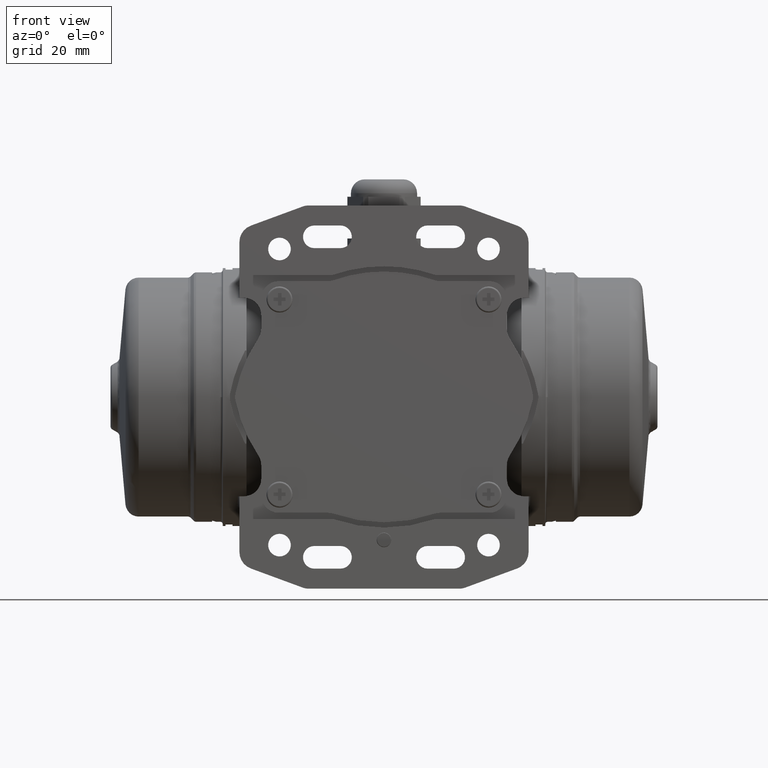
[diagram: clean part render]
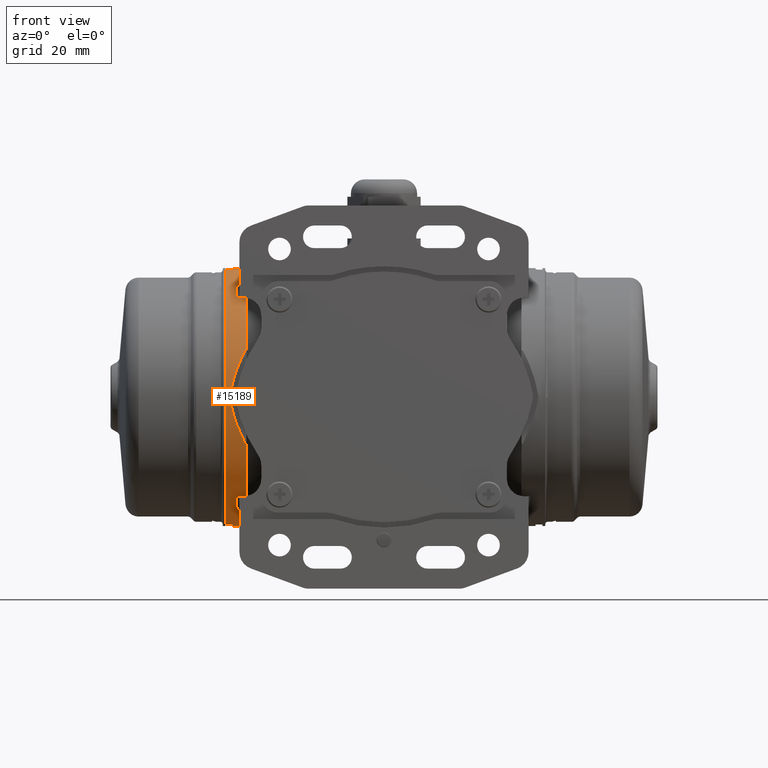
[diagram: same view with one face highlighted and labeled with its STEP entity id]
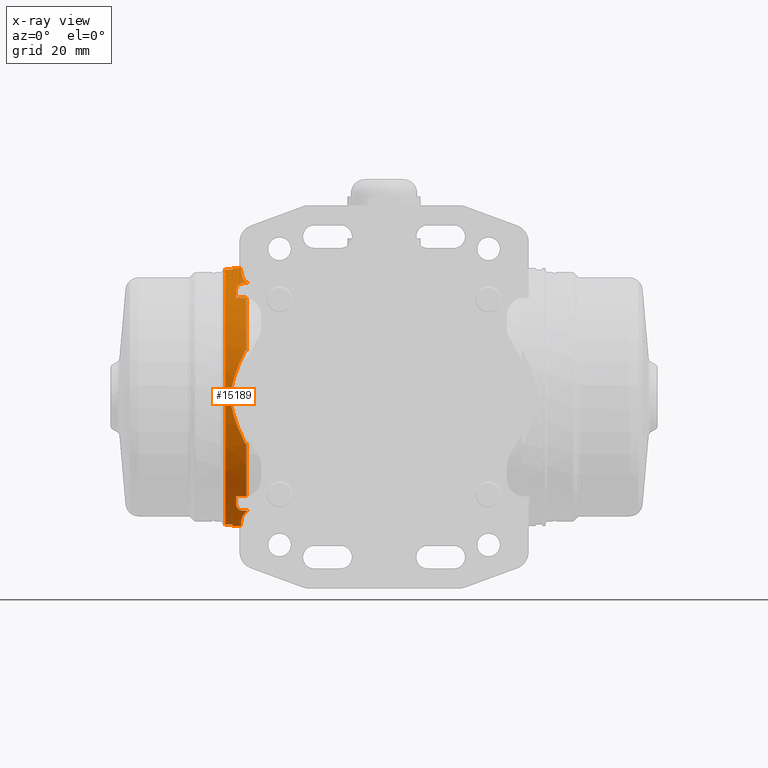
[diagram: x-ray of the same camera — body ghosted, the highlighted face saturated]
A machine part, front view. The second image highlights one B-rep face of the part: STEP entity #15189.
The next image is the same camera in x-ray: the body ghosted, the highlighted face saturated — about 1% of this face is hidden behind the body in this view.
In plain terms, the highlighted cylindrical surface (partial cylindrical patch) has radius 37 mm, axis along (1, 0, 0).
Its self-contained STEP definition (entity closure, byte-faithful):
#7020 = DIRECTION ( 'NONE',  ( -1.000000000000000000, -0.0000000000000000000, -0.0000000000000000000 ) ) ;
#7021 = VECTOR ( 'NONE', #7020, 1000.000000000000000 ) ;
#7022 = CARTESIAN_POINT ( 'NONE',  ( -45.50000000000000000, -23.59555042799380300, 28.50000000000000000 ) ) ;
#7023 = LINE ( 'NONE', #7022, #7021 ) ;
#7024 = AXIS2_PLACEMENT_3D ( 'NONE', #7088, #7087, #7086 ) ;
#7027 = CARTESIAN_POINT ( 'NONE',  ( -43.97929498404933900, -36.94746647253378300, -2.046763744600750300 ) ) ;
#7028 = CARTESIAN_POINT ( 'NONE',  ( -43.72579765124223900, -36.86999388632007400, -3.147708910928642900 ) ) ;
#7029 = CARTESIAN_POINT ( 'NONE',  ( -43.58844623499488300, -36.81892656054223800, -3.696550730294636500 ) ) ;
#7030 = CARTESIAN_POINT ( 'NONE',  ( -43.14894989208048800, -36.63136469944939200, -5.323014347614549300 ) ) ;
#7031 = CARTESIAN_POINT ( 'NONE',  ( -42.81921639415041600, -36.46071629422613100, -6.382411737642537600 ) ) ;
#7032 = CARTESIAN_POINT ( 'NONE',  ( -41.72669007071905900, -35.82440670263269300, -9.491466352031563900 ) ) ;
#7033 = CARTESIAN_POINT ( 'NONE',  ( -40.86115037828177100, -35.23526740595299600, -11.47241846451104100 ) ) ;
#7034 = CARTESIAN_POINT ( 'NONE',  ( -39.86795543595365400, -34.50000000000000000, -13.36974195712096000 ) ) ;
#7035 = B_SPLINE_CURVE_WITH_KNOTS ( 'NONE', 3,
 ( #7034, #7033, #7032, #7031, #7030, #7029, #7028, #7027, #7090, #7089 ),
 .UNSPECIFIED., .F., .F.,
 ( 4, 2, 2, 2, 4 ),
 ( 0.0000000000000000000, 0.006707522283595581500, 0.01006128342539337600, 0.01173816399629226900, 0.01341504456719116300 ),
 .UNSPECIFIED. ) ;
#7036 = CIRCLE ( 'NONE', #7024, 37.00000000000000000 ) ;
#7037 = CARTESIAN_POINT ( 'NONE',  ( -45.50000000000000000, -17.46535450637174900, 32.61842105263160400 ) ) ;
#7038 = LINE ( 'NONE', #7037, #7061 ) ;
#7039 = CARTESIAN_POINT ( 'NONE',  ( -40.50000000000000000, -17.46535450637174900, 32.61842105263160400 ) ) ;
#7040 = CARTESIAN_POINT ( 'NONE',  ( -40.69606229046509300, -17.46535450637174900, 32.61842105263160400 ) ) ;
#7041 = CARTESIAN_POINT ( 'NONE',  ( -40.88581157653456400, -17.51997071809539400, 32.58926499061522700 ) ) ;
#7042 = CARTESIAN_POINT ( 'NONE',  ( -41.13539920093769800, -17.64901003314041000, 32.51945320109139500 ) ) ;
#7043 = CARTESIAN_POINT ( 'NONE',  ( -41.21430576849952100, -17.70022710671970500, 32.49162954343682200 ) ) ;
#7044 = CARTESIAN_POINT ( 'NONE',  ( -41.36042047361856800, -17.81161701175332400, 32.43070041556320100 ) ) ;
#7045 = CARTESIAN_POINT ( 'NONE',  ( -41.42788431633796600, -17.87175725663605500, 32.39761642799825100 ) ) ;
#7046 = CARTESIAN_POINT ( 'NONE',  ( -41.61768408206861400, -18.06202153032009900, 32.29217256335590500 ) ) ;
#7047 = CARTESIAN_POINT ( 'NONE',  ( -41.72808511266013900, -18.20284269768667000, 32.21310642167812000 ) ) ;
#7048 = CARTESIAN_POINT ( 'NONE',  ( -41.92002598386589100, -18.49194142184200700, 32.04802349696857500 ) ) ;
#7049 = CARTESIAN_POINT ( 'NONE',  ( -42.00257235927868000, -18.64142858634819400, 31.96136203096959600 ) ) ;
#7050 = CARTESIAN_POINT ( 'NONE',  ( -42.22001889186756100, -19.10023421999756400, 31.69080534160869400 ) ) ;
#7051 = CARTESIAN_POINT ( 'NONE',  ( -42.32469618211577300, -19.42028160001210700, 31.49593305248655300 ) ) ;
#7052 = CARTESIAN_POINT ( 'NONE',  ( -42.46406304824091600, -20.05580243049692500, 31.09511095235643200 ) ) ;
#7053 = DIRECTION ( 'NONE',  ( -1.000000000000000000, -0.0000000000000000000, -0.0000000000000000000 ) ) ;
#7054 = VECTOR ( 'NONE', #7053, 1000.000000000000000 ) ;
#7055 = CARTESIAN_POINT ( 'NONE',  ( -45.50000000000000000, -17.46535450637174900, -32.61842105263160400 ) ) ;
#7056 = LINE ( 'NONE', #7055, #7054 ) ;
#7057 = CARTESIAN_POINT ( 'NONE',  ( -42.50000000000000700, -20.37481274326711800, 30.88715395729880000 ) ) ;
#7058 = CARTESIAN_POINT ( 'NONE',  ( -42.50000000000000000, -20.69508469349455000, 30.67105263157894900 ) ) ;
#7059 = B_SPLINE_CURVE_WITH_KNOTS ( 'NONE', 3,
 ( #7058, #7057, #7052, #7051, #7050, #7049, #7048, #7047, #7046, #7045, #7044, #7043, #7042, #7041, #7040, #7039 ),
 .UNSPECIFIED., .F., .F.,
 ( 4, 2, 2, 2, 2, 2, 2, 4 ),
 ( 0.0000000000000000000, 0.001145626045637460000, 0.002291252091274925700, 0.002864065114093654900, 0.003436878136912383800, 0.003723284648321749000, 0.004009691159731113900, 0.004582504182549820100 ),
 .UNSPECIFIED. ) ;
#7060 = DIRECTION ( 'NONE',  ( 1.000000000000000000, 0.0000000000000000000, 0.0000000000000000000 ) ) ;
#7061 = VECTOR ( 'NONE', #7060, 1000.000000000000000 ) ;
#7063 = CARTESIAN_POINT ( 'NONE',  ( -40.25000000000000000, -23.59555042799380300, 28.50000000000000000 ) ) ;
#7064 = CARTESIAN_POINT ( 'NONE',  ( -39.99651278259046400, -23.59555042799385300, 28.50000000000000000 ) ) ;
#7065 = CARTESIAN_POINT ( 'NONE',  ( -39.74657882969976400, -23.61874617009254600, 28.48084006557163800 ) ) ;
#7066 = CARTESIAN_POINT ( 'NONE',  ( -39.50000000000000000, -23.66371253172035000, 28.44342998332130200 ) ) ;
#7068 = CARTESIAN_POINT ( 'NONE',  ( -42.50000000000000000, -20.69508469349455000, -30.67105263157894900 ) ) ;
#7069 = CARTESIAN_POINT ( 'NONE',  ( -42.49999999999999300, -20.37481863160391900, -30.88714998418352000 ) ) ;
#7070 = CARTESIAN_POINT ( 'NONE',  ( -42.46406591083722000, -20.05609847523736600, -31.09491225482470600 ) ) ;
#7071 = CARTESIAN_POINT ( 'NONE',  ( -42.35981417049017500, -19.58028069174758200, -31.39502781617326100 ) ) ;
#7072 = CARTESIAN_POINT ( 'NONE',  ( -42.31650839913705700, -19.42207287401804900, -31.49312910412322000 ) ) ;
#7073 = CARTESIAN_POINT ( 'NONE',  ( -42.21092072817045000, -19.10677842108286800, -31.68540853232418900 ) ) ;
#7074 = CARTESIAN_POINT ( 'NONE',  ( -42.14839390078090300, -18.94923283969790600, -31.77984317825596600 ) ) ;
#7075 = CARTESIAN_POINT ( 'NONE',  ( -41.92997678379199300, -18.48800509326775200, -32.05185015349064100 ) ) ;
#7076 = CARTESIAN_POINT ( 'NONE',  ( -41.74398808795023500, -18.18915147736257900, -32.22170095316668900 ) ) ;
#7077 = CARTESIAN_POINT ( 'NONE',  ( -41.36715770188025200, -17.81062609368968800, -32.43150334314177700 ) ) ;
#7078 = CARTESIAN_POINT ( 'NONE',  ( -41.22107413550824600, -17.69362275989858800, -32.49531377638123800 ) ) ;
#7079 = CARTESIAN_POINT ( 'NONE',  ( -40.88714112399405600, -17.52034378969545600, -32.58906652983412800 ) ) ;
#7080 = B_SPLINE_CURVE_WITH_KNOTS ( 'NONE', 3,
 ( #7066, #7065, #7064, #7063 ),
 .UNSPECIFIED., .F., .F.,
 ( 4, 4 ),
 ( 0.0000000000000000000, 0.0007552127112088760900 ),
 .UNSPECIFIED. ) ;
#7083 = CARTESIAN_POINT ( 'NONE',  ( -40.69617017647313900, -17.46535450637175300, -32.61842105263160400 ) ) ;
#7084 = CARTESIAN_POINT ( 'NONE',  ( -40.50000000000000000, -17.46535450637174900, -32.61842105263160400 ) ) ;
#7085 = B_SPLINE_CURVE_WITH_KNOTS ( 'NONE', 3,
 ( #7084, #7083, #7079, #7078, #7077, #7076, #7075, #7074, #7073, #7072, #7071, #7070, #7069, #7068 ),
 .UNSPECIFIED., .F., .F.,
 ( 4, 2, 2, 2, 2, 2, 4 ),
 ( 0.0000000000000000000, 0.0005877091203574149600, 0.001175418240714829900, 0.002350836481429659800, 0.002938545601787069300, 0.003526254722144479100, 0.004701672962859300600 ),
 .UNSPECIFIED. ) ;
#7086 = DIRECTION ( 'NONE',  ( 0.0000000000000000000, 6.217248937900876600E-015, -1.000000000000000000 ) ) ;
#7087 = DIRECTION ( 'NONE',  ( -1.000000000000000000, -0.0000000000000000000, -0.0000000000000000000 ) ) ;
#7088 = CARTESIAN_POINT ( 'NONE',  ( -41.00000000000000000, 0.0000000000000000000, 0.0000000000000000000 ) ) ;
#7089 = CARTESIAN_POINT ( 'NONE',  ( -44.20190712797354800, -36.98812098160704700, -0.9375000000000000000 ) ) ;
#7090 = CARTESIAN_POINT ( 'NONE',  ( -44.09576958012794300, -36.97402792233361200, -1.493527500167453500 ) ) ;
#8457 = CARTESIAN_POINT ( 'NONE',  ( -44.20190712797354800, -36.98812098160704700, -0.9375000000000000000 ) ) ;
#8458 = CARTESIAN_POINT ( 'NONE',  ( -39.50000000000000000, -34.50000000000000000, 13.36974195712093800 ) ) ;
#8477 = CARTESIAN_POINT ( 'NONE',  ( -40.50000000000000000, -17.46535450637174900, -32.61842105263160400 ) ) ;
#8488 = CARTESIAN_POINT ( 'NONE',  ( -41.00000000000000000, 0.0000000000000000000, -36.99999999999999300 ) ) ;
#8512 = DIRECTION ( 'NONE',  ( 1.000000000000000000, 0.0000000000000000000, 0.0000000000000000000 ) ) ;
#8513 = VECTOR ( 'NONE', #8512, 1000.000000000000000 ) ;
#8514 = CARTESIAN_POINT ( 'NONE',  ( -45.50000000000000000, -23.59555042799385300, -28.50000000000000000 ) ) ;
#8515 = LINE ( 'NONE', #8514, #8513 ) ;
#8522 = DIRECTION ( 'NONE',  ( 1.000000000000000000, 0.0000000000000000000, 0.0000000000000000000 ) ) ;
#8527 = CARTESIAN_POINT ( 'NONE',  ( -39.50000000000000000, 0.0000000000000000000, 0.0000000000000000000 ) ) ;
#8530 = CIRCLE ( 'NONE', #8574, 37.00000000000000000 ) ;
#8535 = CARTESIAN_POINT ( 'NONE',  ( -42.50000000000000000, -23.59555042799385300, -28.50000000000000000 ) ) ;
#8538 = CARTESIAN_POINT ( 'NONE',  ( -39.50000000000000000, -23.66371253172035000, -28.44342998332130200 ) ) ;
#8539 = CARTESIAN_POINT ( 'NONE',  ( -39.74657882969975700, -23.61874617009254600, -28.48084006557163400 ) ) ;
#8540 = CARTESIAN_POINT ( 'NONE',  ( -39.99651278259047200, -23.59555042799385300, -28.50000000000000000 ) ) ;
#8541 = CARTESIAN_POINT ( 'NONE',  ( -40.25000000000000000, -23.59555042799385300, -28.50000000000000000 ) ) ;
#8544 = CARTESIAN_POINT ( 'NONE',  ( -39.50000000000000000, -34.50000000000000000, -13.36974195712093800 ) ) ;
#8545 = B_SPLINE_CURVE_WITH_KNOTS ( 'NONE', 3,
 ( #8541, #8540, #8539, #8538 ),
 .UNSPECIFIED., .F., .F.,
 ( 4, 4 ),
 ( 0.0000000000000000000, 0.0007552127112088692600 ),
 .UNSPECIFIED. ) ;
#8549 = CARTESIAN_POINT ( 'NONE',  ( -38.90880135590999300, -17.46535450636384800, -32.61842105263580300 ) ) ;
#8550 = CARTESIAN_POINT ( 'NONE',  ( -39.05700078598742000, -17.33851053776598400, -32.68633895936041300 ) ) ;
#8551 = CARTESIAN_POINT ( 'NONE',  ( -39.19152129172922400, -17.19766572100087400, -32.76076564588446200 ) ) ;
#8552 = CARTESIAN_POINT ( 'NONE',  ( -39.43362830842846700, -16.90346856777728800, -32.91352643418839100 ) ) ;
#8553 = CARTESIAN_POINT ( 'NONE',  ( -39.54239140874485500, -16.74904211674071100, -32.99244892897336000 ) ) ;
#8554 = CARTESIAN_POINT ( 'NONE',  ( -39.84117407413256700, -16.26861199442412300, -33.23342679309428900 ) ) ;
#8555 = CARTESIAN_POINT ( 'NONE',  ( -40.00396776862909600, -15.92465674057796900, -33.39991084903807900 ) ) ;
#8556 = CARTESIAN_POINT ( 'NONE',  ( -40.27521931202863200, -15.22499370799621200, -33.72459493634287500 ) ) ;
#8557 = CARTESIAN_POINT ( 'NONE',  ( -40.38509931579449100, -14.86615653473193500, -33.88444491682779600 ) ) ;
#8558 = CARTESIAN_POINT ( 'NONE',  ( -40.56991837065994100, -14.13426085586953100, -34.19621159565669200 ) ) ;
#8559 = CARTESIAN_POINT ( 'NONE',  ( -40.64476746356177700, -13.76034655455819500, -34.34847003477015200 ) ) ;
#8560 = CARTESIAN_POINT ( 'NONE',  ( -40.82957792029949900, -12.62585357913357800, -34.78858930055167100 ) ) ;
#8561 = CARTESIAN_POINT ( 'NONE',  ( -40.90013936070811700, -11.85832036126038600, -35.05772440362877500 ) ) ;
#8562 = CARTESIAN_POINT ( 'NONE',  ( -40.98573780869259100, -10.30363124082755300, -35.54573090265713400 ) ) ;
#8564 = DIRECTION ( 'NONE',  ( -1.000000000000000000, -0.0000000000000000000, -0.0000000000000000000 ) ) ;
#8565 = VECTOR ( 'NONE', #8564, 1000.000000000000000 ) ;
#8566 = CARTESIAN_POINT ( 'NONE',  ( -45.50000000000000000, -34.50000000000000000, -13.36974195712093800 ) ) ;
#8567 = LINE ( 'NONE', #8566, #8565 ) ;
#8568 = CARTESIAN_POINT ( 'NONE',  ( -40.99999999999999300, -9.516432987338500700, -35.76463215197206600 ) ) ;
#8569 = CARTESIAN_POINT ( 'NONE',  ( -41.00000000000000000, -8.720118586411480500, -35.95774647887324700 ) ) ;
#8570 = CARTESIAN_POINT ( 'NONE',  ( -44.20190712797354800, -36.98812098160704700, 0.9375000000000000000 ) ) ;
#8571 = B_SPLINE_CURVE_WITH_KNOTS ( 'NONE', 3,
 ( #8569, #8568, #8562, #8561, #8560, #8559, #8558, #8557, #8556, #8555, #8554, #8553, #8552, #8551, #8550, #8549 ),
 .UNSPECIFIED., .F., .F.,
 ( 4, 2, 2, 2, 2, 2, 2, 4 ),
 ( 0.0000000000000000000, 0.002447431982798511800, 0.004894863965597023500, 0.006118579956996280700, 0.007342295948395537000, 0.008566011939794789000, 0.009177869935494416300, 0.009789727931194041800 ),
 .UNSPECIFIED. ) ;
#8572 = CARTESIAN_POINT ( 'NONE',  ( -39.86795543595365400, -34.50000000000000000, 13.36974195712096000 ) ) ;
#8573 = DIRECTION ( 'NONE',  ( 0.0000000000000000000, 0.0000000000000000000, -1.000000000000000000 ) ) ;
#8574 = AXIS2_PLACEMENT_3D ( 'NONE', #8527, #8522, #8573 ) ;
#8577 = CARTESIAN_POINT ( 'NONE',  ( -39.86795543595365400, -34.50000000000000000, -13.36974195712096000 ) ) ;
#8582 = CIRCLE ( 'NONE', #8636, 37.00000000000000000 ) ;
#8596 = DIRECTION ( 'NONE',  ( 0.0000000000000000000, 0.0000000000000000000, -1.000000000000000000 ) ) ;
#8597 = DIRECTION ( 'NONE',  ( -1.000000000000000000, -0.0000000000000000000, -0.0000000000000000000 ) ) ;
#8598 = CARTESIAN_POINT ( 'NONE',  ( -41.00000000000000000, 0.0000000000000000000, 0.0000000000000000000 ) ) ;
#8599 = AXIS2_PLACEMENT_3D ( 'NONE', #8598, #8597, #8596 ) ;
#8606 = CARTESIAN_POINT ( 'NONE',  ( -41.00000000000000000, -8.720118586411480500, -35.95774647887324700 ) ) ;
#8607 = CIRCLE ( 'NONE', #8599, 37.00000000000000000 ) ;
#8611 = CARTESIAN_POINT ( 'NONE',  ( -42.50000000000000000, -20.69508469349455000, 30.67105263157894900 ) ) ;
#8618 = CARTESIAN_POINT ( 'NONE',  ( -40.25000000000000000, -23.59555042799385300, -28.50000000000000000 ) ) ;
#8619 = CARTESIAN_POINT ( 'NONE',  ( -38.90880135590074900, -17.46535450637174900, 32.61842105263160400 ) ) ;
#8633 = DIRECTION ( 'NONE',  ( 0.0000000000000000000, 0.0000000000000000000, -1.000000000000000000 ) ) ;
#8634 = DIRECTION ( 'NONE',  ( 1.000000000000000000, 0.0000000000000000000, 0.0000000000000000000 ) ) ;
#8635 = CARTESIAN_POINT ( 'NONE',  ( -39.50000000000000000, 0.0000000000000000000, 0.0000000000000000000 ) ) ;
#8636 = AXIS2_PLACEMENT_3D ( 'NONE', #8635, #8634, #8633 ) ;
#8639 = DIRECTION ( 'NONE',  ( -1.875376730785737500E-016, 0.0000000000000000000, -1.000000000000000000 ) ) ;
#8640 = DIRECTION ( 'NONE',  ( -1.000000000000000000, -0.0000000000000000000, 2.523234146875355000E-016 ) ) ;
#8641 = CARTESIAN_POINT ( 'NONE',  ( -42.50000000000000000, 0.0000000000000000000, 0.0000000000000000000 ) ) ;
#8642 = AXIS2_PLACEMENT_3D ( 'NONE', #8641, #8640, #8639 ) ;
#8644 = CIRCLE ( 'NONE', #8642, 37.00000000000000000 ) ;
#9014 = DIRECTION ( 'NONE',  ( -1.875376730785737500E-016, -1.065814103640150100E-014, -1.000000000000000000 ) ) ;
#9015 = DIRECTION ( 'NONE',  ( -1.000000000000000000, -0.0000000000000000000, 2.523234146875355000E-016 ) ) ;
#9016 = CARTESIAN_POINT ( 'NONE',  ( -42.50000000000000000, 0.0000000000000000000, 0.0000000000000000000 ) ) ;
#9017 = AXIS2_PLACEMENT_3D ( 'NONE', #9016, #9015, #9014 ) ;
#9018 = CIRCLE ( 'NONE', #9017, 37.00000000000000000 ) ;
#9021 = CARTESIAN_POINT ( 'NONE',  ( -41.00000000000000000, -8.720118586411409500, 35.95774647887324700 ) ) ;
#15012 = EDGE_CURVE ( 'NONE', #15203, #15043, #23052, .T. ) ;
#15041 = ORIENTED_EDGE ( 'NONE', *, *, #15012, .F. ) ;
#15043 = VERTEX_POINT ( 'NONE', #23072 ) ;
#15108 = VERTEX_POINT ( 'NONE', #24756 ) ;
#15135 = ORIENTED_EDGE ( 'NONE', *, *, #16129, .T. ) ;
#15136 = VERTEX_POINT ( 'NONE', #24973 ) ;
#15137 = ORIENTED_EDGE ( 'NONE', *, *, #16067, .T. ) ;
#15138 = EDGE_CURVE ( 'NONE', #16096, #16095, #25065, .T. ) ;
#15140 = VERTEX_POINT ( 'NONE', #24908 ) ;
#15141 = VERTEX_POINT ( 'NONE', #25074 ) ;
#15145 = EDGE_CURVE ( 'NONE', #16095, #16060, #25081, .T. ) ;
#15146 = ORIENTED_EDGE ( 'NONE', *, *, #15380, .T. ) ;
#15150 = ORIENTED_EDGE ( 'NONE', *, *, #15186, .F. ) ;
#15152 = ORIENTED_EDGE ( 'NONE', *, *, #15166, .F. ) ;
#15153 = VERTEX_POINT ( 'NONE', #25129 ) ;
#15157 = VERTEX_POINT ( 'NONE', #25124 ) ;
#15158 = ORIENTED_EDGE ( 'NONE', *, *, #15182, .T. ) ;
#15166 = EDGE_CURVE ( 'NONE', #15191, #15153, #25092, .T. ) ;
#15171 = ORIENTED_EDGE ( 'NONE', *, *, #15181, .F. ) ;
#15176 = VERTEX_POINT ( 'NONE', #25149 ) ;
#15181 = EDGE_CURVE ( 'NONE', #15153, #15108, #25194, .T. ) ;
#15182 = EDGE_CURVE ( 'NONE', #15191, #15157, #25187, .T. ) ;
#15186 = EDGE_CURVE ( 'NONE', #15043, #15176, #25177, .T. ) ;
#15189 = ADVANCED_FACE ( 'NONE', ( #25169 ), #25240, .T. ) ;
#15191 = VERTEX_POINT ( 'NONE', #25238 ) ;
#15194 = EDGE_LOOP ( 'NONE', ( #15171, #15152, #15158, #15195, #15150, #15041, #15204, #16119, #15377, #16059, #16062, #16126, #15375, #15137, #16092, #16070, #15357, #16080, #15359, #16111, #15362, #15146, #16128, #15135, #16127, #15328, #16130, #16101 ) ) ;
#15195 = ORIENTED_EDGE ( 'NONE', *, *, #15208, .T. ) ;
#15203 = VERTEX_POINT ( 'NONE', #25249 ) ;
#15204 = ORIENTED_EDGE ( 'NONE', *, *, #15336, .T. ) ;
#15208 = EDGE_CURVE ( 'NONE', #15157, #15176, #25312, .T. ) ;
#15283 = VERTEX_POINT ( 'NONE', #25480 ) ;
#15325 = VERTEX_POINT ( 'NONE', #25584 ) ;
#15326 = VERTEX_POINT ( 'NONE', #25583 ) ;
#15328 = ORIENTED_EDGE ( 'NONE', *, *, #15381, .T. ) ;
#15329 = EDGE_CURVE ( 'NONE', #16104, #16131, #25577, .T. ) ;
#15336 = EDGE_CURVE ( 'NONE', #15203, #16056, #25581, .T. ) ;
#15354 = VERTEX_POINT ( 'NONE', #25644 ) ;
#15357 = ORIENTED_EDGE ( 'NONE', *, *, #15376, .T. ) ;
#15358 = EDGE_CURVE ( 'NONE', #16061, #16096, #25623, .T. ) ;
#15359 = ORIENTED_EDGE ( 'NONE', *, *, #15138, .T. ) ;
#15362 = ORIENTED_EDGE ( 'NONE', *, *, #16086, .F. ) ;
#15363 = EDGE_CURVE ( 'NONE', #15140, #15354, #7023, .T. ) ;
#15373 = EDGE_CURVE ( 'NONE', #16102, #15136, #7059, .T. ) ;
#15374 = EDGE_CURVE ( 'NONE', #15325, #16063, #7056, .T. ) ;
#15375 = ORIENTED_EDGE ( 'NONE', *, *, #16064, .T. ) ;
#15376 = EDGE_CURVE ( 'NONE', #16091, #16061, #7035, .T. ) ;
#15377 = ORIENTED_EDGE ( 'NONE', *, *, #16090, .T. ) ;
#15378 = EDGE_CURVE ( 'NONE', #16131, #15108, #7036, .T. ) ;
#15379 = EDGE_CURVE ( 'NONE', #16063, #15283, #7085, .T. ) ;
#15380 = EDGE_CURVE ( 'NONE', #15141, #15140, #7080, .T. ) ;
#15381 = EDGE_CURVE ( 'NONE', #15136, #16104, #7038, .T. ) ;
#16056 = VERTEX_POINT ( 'NONE', #8488 ) ;
#16059 = ORIENTED_EDGE ( 'NONE', *, *, #15374, .T. ) ;
#16060 = VERTEX_POINT ( 'NONE', #8458 ) ;
#16061 = VERTEX_POINT ( 'NONE', #8457 ) ;
#16062 = ORIENTED_EDGE ( 'NONE', *, *, #15379, .T. ) ;
#16063 = VERTEX_POINT ( 'NONE', #8477 ) ;
#16064 = EDGE_CURVE ( 'NONE', #16079, #16105, #8515, .T. ) ;
#16067 = EDGE_CURVE ( 'NONE', #16105, #15326, #8545, .T. ) ;
#16068 = VERTEX_POINT ( 'NONE', #8544 ) ;
#16070 = ORIENTED_EDGE ( 'NONE', *, *, #16093, .T. ) ;
#16079 = VERTEX_POINT ( 'NONE', #8535 ) ;
#16080 = ORIENTED_EDGE ( 'NONE', *, *, #15358, .T. ) ;
#16086 = EDGE_CURVE ( 'NONE', #15141, #16060, #8530, .T. ) ;
#16090 = EDGE_CURVE ( 'NONE', #16103, #15325, #8571, .T. ) ;
#16091 = VERTEX_POINT ( 'NONE', #8577 ) ;
#16092 = ORIENTED_EDGE ( 'NONE', *, *, #16121, .F. ) ;
#16093 = EDGE_CURVE ( 'NONE', #16068, #16091, #8567, .T. ) ;
#16095 = VERTEX_POINT ( 'NONE', #8572 ) ;
#16096 = VERTEX_POINT ( 'NONE', #8570 ) ;
#16101 = ORIENTED_EDGE ( 'NONE', *, *, #15378, .T. ) ;
#16102 = VERTEX_POINT ( 'NONE', #8611 ) ;
#16103 = VERTEX_POINT ( 'NONE', #8606 ) ;
#16104 = VERTEX_POINT ( 'NONE', #8619 ) ;
#16105 = VERTEX_POINT ( 'NONE', #8618 ) ;
#16106 = EDGE_CURVE ( 'NONE', #16056, #16103, #8607, .T. ) ;
#16111 = ORIENTED_EDGE ( 'NONE', *, *, #15145, .T. ) ;
#16116 = EDGE_CURVE ( 'NONE', #15283, #16079, #8644, .T. ) ;
#16119 = ORIENTED_EDGE ( 'NONE', *, *, #16106, .T. ) ;
#16121 = EDGE_CURVE ( 'NONE', #16068, #15326, #8582, .T. ) ;
#16126 = ORIENTED_EDGE ( 'NONE', *, *, #16116, .T. ) ;
#16127 = ORIENTED_EDGE ( 'NONE', *, *, #15373, .T. ) ;
#16128 = ORIENTED_EDGE ( 'NONE', *, *, #15363, .T. ) ;
#16129 = EDGE_CURVE ( 'NONE', #15354, #16102, #9018, .T. ) ;
#16130 = ORIENTED_EDGE ( 'NONE', *, *, #15329, .T. ) ;
#16131 = VERTEX_POINT ( 'NONE', #9021 ) ;
#23052 = CIRCLE ( 'NONE', #23115, 37.00000000000000000 ) ;
#23072 = CARTESIAN_POINT ( 'NONE',  ( -43.50000000000000000, -5.521091496096469900, -36.58575609020169800 ) ) ;
#23087 = DIRECTION ( 'NONE',  ( 0.0000000000000000000, 0.0000000000000000000, 1.000000000000000000 ) ) ;
#23089 = DIRECTION ( 'NONE',  ( -1.000000000000000000, 0.0000000000000000000, 0.0000000000000000000 ) ) ;
#23091 = CARTESIAN_POINT ( 'NONE',  ( -43.50000000000000000, 0.0000000000000000000, -4.163336342344335000E-013 ) ) ;
#23115 = AXIS2_PLACEMENT_3D ( 'NONE', #23091, #23089, #23087 ) ;
#24193 = CARTESIAN_POINT ( 'NONE',  ( -44.20190712797354800, -36.98812098160704700, 0.9375000000000000000 ) ) ;
#24197 = CARTESIAN_POINT ( 'NONE',  ( -44.32121052103151000, -37.00396221615614000, 0.3124999999999999400 ) ) ;
#24199 = DIRECTION ( 'NONE',  ( 1.000000000000000000, 0.0000000000000000000, 0.0000000000000000000 ) ) ;
#24200 = VECTOR ( 'NONE', #24199, 1000.000000000000000 ) ;
#24756 = CARTESIAN_POINT ( 'NONE',  ( -41.00000000000000000, 4.531193156845206800E-015, 37.00000000000000000 ) ) ;
#24908 = CARTESIAN_POINT ( 'NONE',  ( -40.25000000000000000, -23.59555042799380300, 28.50000000000000000 ) ) ;
#24973 = CARTESIAN_POINT ( 'NONE',  ( -40.50000000000000000, -17.46535450637174900, 32.61842105263160400 ) ) ;
#25015 = CARTESIAN_POINT ( 'NONE',  ( -45.50000000000000000, -34.50000000000000000, 13.36974195712093800 ) ) ;
#25045 = CARTESIAN_POINT ( 'NONE',  ( -39.86795543595365400, -34.50000000000000000, 13.36974195712096000 ) ) ;
#25048 = CARTESIAN_POINT ( 'NONE',  ( -40.36512610967346100, -34.86805804782390800, 12.41998520858764700 ) ) ;
#25049 = CARTESIAN_POINT ( 'NONE',  ( -40.83266413077164700, -35.20112656849297400, 11.44439953338837400 ) ) ;
#25051 = CARTESIAN_POINT ( 'NONE',  ( -41.70496551065166100, -35.79133364458035500, 9.437903809279546900 ) ) ;
#25052 = CARTESIAN_POINT ( 'NONE',  ( -42.10624013466964800, -36.04604218497237200, 8.414625433420594500 ) ) ;
#25053 = CARTESIAN_POINT ( 'NONE',  ( -43.19750031801946500, -36.67984465977510000, 5.299180057053678000 ) ) ;
#25056 = CARTESIAN_POINT ( 'NONE',  ( -43.77856915463908600, -36.93190970414679700, 3.155259499979290900 ) ) ;
#25058 = CARTESIAN_POINT ( 'NONE',  ( -44.20190712797354800, -36.98812098160704700, 0.9375000000000000000 ) ) ;
#25065 = B_SPLINE_CURVE_WITH_KNOTS ( 'NONE', 3,
 ( #25058, #25056, #25053, #25052, #25051, #25049, #25048, #25045 ),
 .UNSPECIFIED., .F., .F.,
 ( 4, 2, 2, 4 ),
 ( 0.0009401430247681466800, 0.007643785695174201400, 0.01099560703037723300, 0.01434742836558026500 ),
 .UNSPECIFIED. ) ;
#25074 = CARTESIAN_POINT ( 'NONE',  ( -39.50000000000000000, -23.66371253172035000, 28.44342998332130200 ) ) ;
#25081 = LINE ( 'NONE', #25015, #24200 ) ;
#25092 = CIRCLE ( 'NONE', #25155, 37.00000000000000000 ) ;
#25124 = CARTESIAN_POINT ( 'NONE',  ( -45.50000000000000000, -5.521091496096490300, 36.58575609020169800 ) ) ;
#25129 = CARTESIAN_POINT ( 'NONE',  ( -43.50000000000000000, 4.531193156845207600E-015, 37.00000000000000700 ) ) ;
#25149 = CARTESIAN_POINT ( 'NONE',  ( -45.50000000000000000, -5.521091496096469900, -36.58575609020169800 ) ) ;
#25151 = DIRECTION ( 'NONE',  ( 0.0000000000000000000, 0.0000000000000000000, -1.000000000000000000 ) ) ;
#25152 = DIRECTION ( 'NONE',  ( -1.000000000000000000, 0.0000000000000000000, 0.0000000000000000000 ) ) ;
#25154 = CARTESIAN_POINT ( 'NONE',  ( -43.50000000000000000, 0.0000000000000000000, 6.938893903907230000E-015 ) ) ;
#25155 = AXIS2_PLACEMENT_3D ( 'NONE', #25154, #25152, #25151 ) ;
#25169 = FACE_OUTER_BOUND ( 'NONE', #15194, .T. ) ;
#25172 = DIRECTION ( 'NONE',  ( -1.000000000000000000, 0.0000000000000000000, 0.0000000000000000000 ) ) ;
#25174 = VECTOR ( 'NONE', #25172, 1000.000000000000000 ) ;
#25176 = CARTESIAN_POINT ( 'NONE',  ( -43.50000000000000000, -5.521091496096469900, -36.58575609020169800 ) ) ;
#25177 = LINE ( 'NONE', #25176, #25174 ) ;
#25181 = CARTESIAN_POINT ( 'NONE',  ( -45.50000000000000000, 0.0000000000000000000, 0.0000000000000000000 ) ) ;
#25183 = DIRECTION ( 'NONE',  ( -1.000000000000000000, 0.0000000000000000000, 0.0000000000000000000 ) ) ;
#25184 = VECTOR ( 'NONE', #25183, 1000.000000000000000 ) ;
#25186 = CARTESIAN_POINT ( 'NONE',  ( -43.50000000000000000, -5.521091496096490300, 36.58575609020169800 ) ) ;
#25187 = LINE ( 'NONE', #25186, #25184 ) ;
#25190 = AXIS2_PLACEMENT_3D ( 'NONE', #25181, #25235, #25197 ) ;
#25191 = DIRECTION ( 'NONE',  ( 1.000000000000000000, 0.0000000000000000000, 0.0000000000000000000 ) ) ;
#25192 = VECTOR ( 'NONE', #25191, 1000.000000000000000 ) ;
#25193 = CARTESIAN_POINT ( 'NONE',  ( -45.50000000000000000, 4.531193156845206800E-015, 37.00000000000000000 ) ) ;
#25194 = LINE ( 'NONE', #25193, #25192 ) ;
#25197 = DIRECTION ( 'NONE',  ( 0.0000000000000000000, 0.0000000000000000000, -1.000000000000000000 ) ) ;
#25235 = DIRECTION ( 'NONE',  ( 1.000000000000000000, 0.0000000000000000000, 0.0000000000000000000 ) ) ;
#25238 = CARTESIAN_POINT ( 'NONE',  ( -43.50000000000000000, -5.521091496096490300, 36.58575609020169800 ) ) ;
#25240 = CYLINDRICAL_SURFACE ( 'NONE', #25190, 37.00000000000000000 ) ;
#25249 = CARTESIAN_POINT ( 'NONE',  ( -43.50000000000000000, 0.0000000000000000000, -37.00000000000041200 ) ) ;
#25298 = DIRECTION ( 'NONE',  ( 0.0000000000000000000, 0.0000000000000000000, -1.000000000000000000 ) ) ;
#25299 = DIRECTION ( 'NONE',  ( 1.000000000000000000, 0.0000000000000000000, 0.0000000000000000000 ) ) ;
#25300 = CARTESIAN_POINT ( 'NONE',  ( -45.50000000000000000, 0.0000000000000000000, 0.0000000000000000000 ) ) ;
#25301 = AXIS2_PLACEMENT_3D ( 'NONE', #25300, #25299, #25298 ) ;
#25312 = CIRCLE ( 'NONE', #25301, 37.00000000000000000 ) ;
#25480 = CARTESIAN_POINT ( 'NONE',  ( -42.50000000000000000, -20.69508469349455000, -30.67105263157894900 ) ) ;
#25557 = CARTESIAN_POINT ( 'NONE',  ( -41.00000000000000000, -8.720118586411409500, 35.95774647887324700 ) ) ;
#25558 = CARTESIAN_POINT ( 'NONE',  ( -41.00000000000000700, -9.516220681970267500, 35.76468363817930700 ) ) ;
#25559 = CARTESIAN_POINT ( 'NONE',  ( -40.98572617907870400, -10.30257356892614100, 35.54599635635149500 ) ) ;
#25560 = CARTESIAN_POINT ( 'NONE',  ( -40.90045379382194600, -11.85387384392442200, 35.05918644237502900 ) ) ;
#25561 = CARTESIAN_POINT ( 'NONE',  ( -40.83018440185065900, -12.61887375461199500, 34.79102646172071200 ) ) ;
#25562 = CARTESIAN_POINT ( 'NONE',  ( -40.58603831624317600, -14.12407701902367300, 34.20762993040695900 ) ) ;
#25563 = CARTESIAN_POINT ( 'NONE',  ( -40.41210638317875200, -14.87064730607504600, 33.88892290577947400 ) ) ;
#25564 = CARTESIAN_POINT ( 'NONE',  ( -40.00583405531756400, -15.92046782088452700, 33.40190886937550400 ) ) ;
#25565 = CARTESIAN_POINT ( 'NONE',  ( -39.84605080886402100, -16.25985808797360800, 33.23775351830674700 ) ) ;
#25566 = CARTESIAN_POINT ( 'NONE',  ( -39.54478918791293300, -16.74563185673896700, 32.99419077223682000 ) ) ;
#25567 = CARTESIAN_POINT ( 'NONE',  ( -39.43497823060078400, -16.90173517426884700, 32.91442131275437800 ) ) ;
#25568 = CARTESIAN_POINT ( 'NONE',  ( -39.19165691693053300, -17.19759338043994400, 32.76080835656631500 ) ) ;
#25572 = CARTESIAN_POINT ( 'NONE',  ( -39.05707804234490500, -17.33844441401083700, 32.68637436496219100 ) ) ;
#25573 = CARTESIAN_POINT ( 'NONE',  ( -38.90880135590074900, -17.46535450637174900, 32.61842105263160400 ) ) ;
#25577 = B_SPLINE_CURVE_WITH_KNOTS ( 'NONE', 3,
 ( #25573, #25572, #25568, #25567, #25566, #25565, #25564, #25563, #25562, #25561, #25560, #25559, #25558, #25557 ),
 .UNSPECIFIED., .F., .F.,
 ( 4, 2, 2, 2, 2, 2, 4 ),
 ( 0.0003847988560522524700, 0.001004605986061149200, 0.001624413116070045800, 0.002864027376087849100, 0.005343255896123471300, 0.007822484416159092600, 0.01030171293619471500 ),
 .UNSPECIFIED. ) ;
#25581 = LINE ( 'NONE', #25618, #25617 ) ;
#25583 = CARTESIAN_POINT ( 'NONE',  ( -39.50000000000000000, -23.66371253172035000, -28.44342998332130200 ) ) ;
#25584 = CARTESIAN_POINT ( 'NONE',  ( -38.90880135590999300, -17.46535450636384800, -32.61842105263580300 ) ) ;
#25616 = DIRECTION ( 'NONE',  ( 1.000000000000000000, 0.0000000000000000000, 0.0000000000000000000 ) ) ;
#25617 = VECTOR ( 'NONE', #25616, 1000.000000000000000 ) ;
#25618 = CARTESIAN_POINT ( 'NONE',  ( -45.50000000000000000, 0.0000000000000000000, -37.00000000000000000 ) ) ;
#25620 = CARTESIAN_POINT ( 'NONE',  ( -44.32121052103150300, -37.00396221615614000, -0.3124999999999999400 ) ) ;
#25621 = CARTESIAN_POINT ( 'NONE',  ( -44.20190712797354800, -36.98812098160704700, -0.9375000000000000000 ) ) ;
#25623 = B_SPLINE_CURVE_WITH_KNOTS ( 'NONE', 3,
 ( #25621, #25620, #24197, #24193 ),
 .UNSPECIFIED., .F., .F.,
 ( 4, 4 ),
 ( 0.0000000000000000000, 0.001874999999999999900 ),
 .UNSPECIFIED. ) ;
#25644 = CARTESIAN_POINT ( 'NONE',  ( -42.50000000000000000, -23.59555042799380300, 28.50000000000000000 ) ) ;